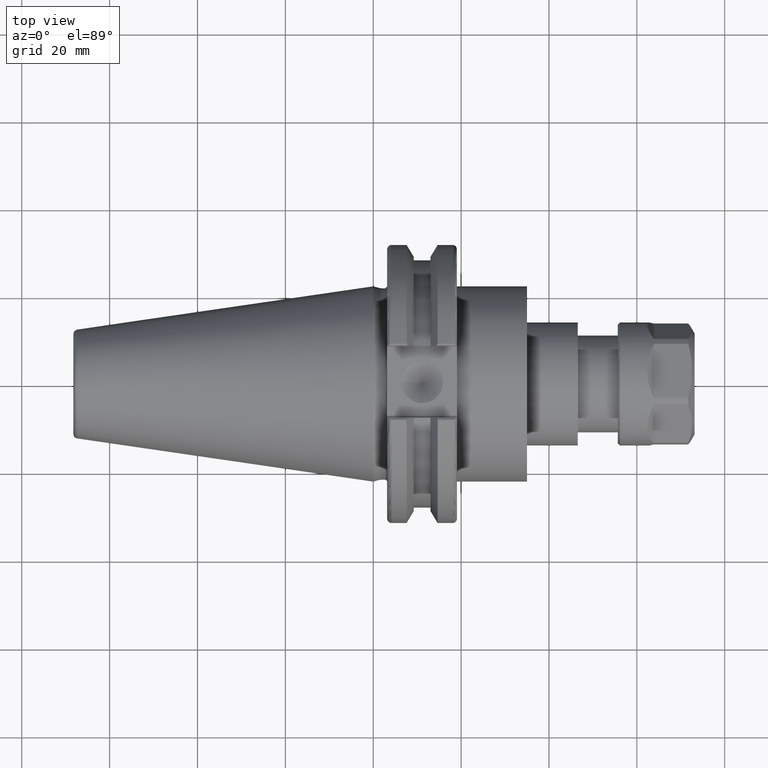
[diagram: clean part render]
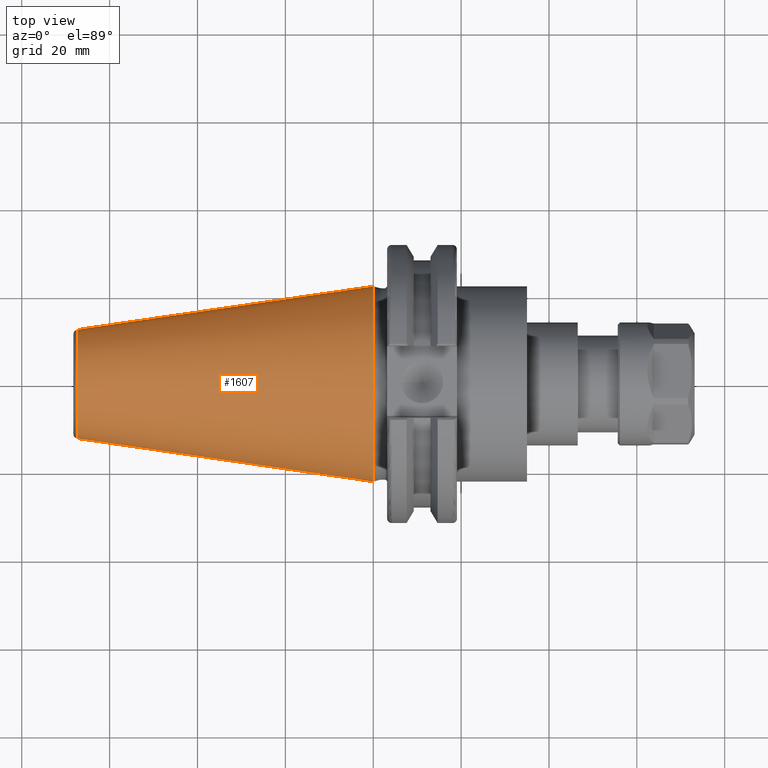
[diagram: same view with one face highlighted and labeled with its STEP entity id]
A machine part, top view. The second image highlights one B-rep face of the part: STEP entity #1607.
In plain terms, the highlighted conical surface has half-angle 8.297 deg.
Its self-contained STEP definition (entity closure, byte-faithful):
#184=CONICAL_SURFACE('',#1810,17.2484375,0.144812498238939);
#227=FACE_OUTER_BOUND('',#329,.T.);
#329=EDGE_LOOP('',(#1252,#1253,#1254,#1255,#1256));
#453=LINE('',#2757,#562);
#562=VECTOR('',#2116,17.2484375);
#648=CIRCLE('',#1804,12.3966635780937);
#649=CIRCLE('',#1805,12.3966635780937);
#653=CIRCLE('',#1811,22.225);
#779=VERTEX_POINT('',#2744);
#780=VERTEX_POINT('',#2745);
#783=VERTEX_POINT('',#2755);
#958=EDGE_CURVE('',#779,#780,#648,.T.);
#959=EDGE_CURVE('',#780,#779,#649,.T.);
#963=EDGE_CURVE('',#783,#783,#653,.T.);
#964=EDGE_CURVE('',#783,#780,#453,.T.);
#1252=ORIENTED_EDGE('',*,*,#963,.F.);
#1253=ORIENTED_EDGE('',*,*,#964,.T.);
#1254=ORIENTED_EDGE('',*,*,#958,.F.);
#1255=ORIENTED_EDGE('',*,*,#959,.F.);
#1256=ORIENTED_EDGE('',*,*,#964,.F.);
#1607=ADVANCED_FACE('',(#227),#184,.T.);
#1804=AXIS2_PLACEMENT_3D('',#2746,#2100,#2101);
#1805=AXIS2_PLACEMENT_3D('',#2747,#2102,#2103);
#1810=AXIS2_PLACEMENT_3D('',#2754,#2112,#2113);
#1811=AXIS2_PLACEMENT_3D('',#2756,#2114,#2115);
#2100=DIRECTION('center_axis',(-1.,0.,0.));
#2101=DIRECTION('ref_axis',(0.,-1.,3.06161699786838E-17));
#2102=DIRECTION('center_axis',(-1.,0.,0.));
#2103=DIRECTION('ref_axis',(0.,-1.,3.06161699786838E-17));
#2112=DIRECTION('center_axis',(1.,0.,0.));
#2113=DIRECTION('ref_axis',(0.,1.,0.));
#2114=DIRECTION('center_axis',(1.,0.,0.));
#2115=DIRECTION('ref_axis',(0.,0.,-1.));
#2116=DIRECTION('',(-0.989532981063282,0.144306893071729,1.76724974695192E-17));
#2744=CARTESIAN_POINT('',(-67.3943068930717,-1.5181534371019E-15,12.3966635780937));
#2745=CARTESIAN_POINT('',(-67.3943068930718,-12.3966635780937,-1.5181534371019E-15));
#2746=CARTESIAN_POINT('Origin',(-67.3943068930717,0.,-1.89769179637738E-15));
#2747=CARTESIAN_POINT('Origin',(-67.3943068930717,0.,-1.89769179637738E-15));
#2754=CARTESIAN_POINT('Origin',(-34.125,0.,0.));
#2755=CARTESIAN_POINT('',(0.,-22.225,-2.72177751110499E-15));
#2756=CARTESIAN_POINT('Origin',(0.,0.,0.));
#2757=CARTESIAN_POINT('',(-34.125,-17.2484375,-2.11232437746682E-15));